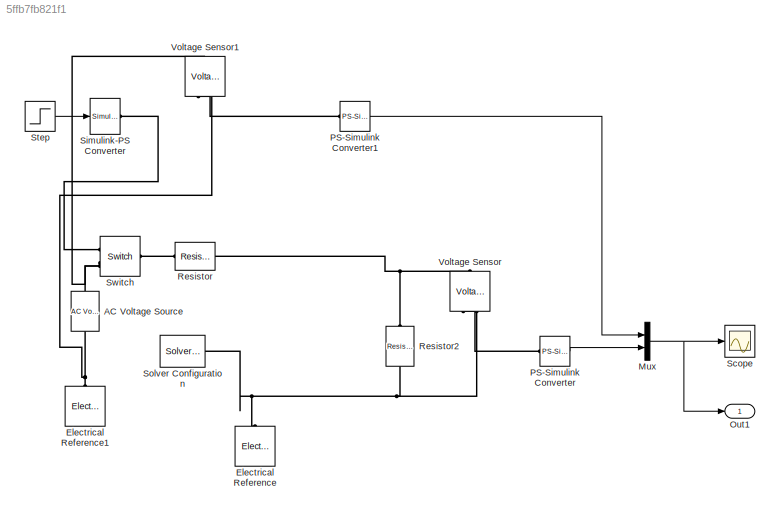
MODEL slx_5ffb7fb821f1
KIND model
BLOCK [Reference] AC Voltage Source  REF=fl_lib/Electrical/Electrical Sources/AC Voltage Source
  ClassName = ac_voltage
  ComponentPath = foundation.electrical.sources.ac_voltage
  ComponentVariantNames = ac_voltage
  ComponentVariants = foundation.electrical.sources.ac_voltage
  LocalVarDescs = |i|v
  LocalVarLogging = [0 0]
  LocalVarNames = |i|v
  Ports = [0, 0, 0, 0, 0, 1, 1]
  SchemaVersion = 1
  SourceBlock = fl_lib/Electrical/Electrical Sources/AC Voltage Source
  SourceFile = foundation.electrical.sources.ac_voltage
  SourceType = AC Voltage Source
  amp = 1
  amp_unit = V
  frequency = 60
  frequency_unit = Hz
  i_Log = off
  omega = 0
  omega_unit = rad/s
  shift = 0
  shift_unit = deg
  v_Log = off
BLOCK [Reference] Electrical Reference  REF=fl_lib/Electrical/Electrical Elements/Electrical Reference
  ClassName = reference
  ComponentPath = foundation.electrical.elements.reference
  ComponentVariantNames = reference
  ComponentVariants = foundation.electrical.elements.reference
  LocalVarDescs = |i
  LocalVarLogging = 0
  LocalVarNames = |i
  Ports = [0, 0, 0, 0, 0, 1]
  SchemaVersion = 1
  SourceBlock = fl_lib/Electrical/Electrical Elements/Electrical Reference
  SourceFile = foundation.electrical.elements.reference
  SourceType = Electrical Reference
  i_Log = off
BLOCK [Reference] Electrical Reference1  REF=fl_lib/Electrical/Electrical Elements/Electrical Reference
  ClassName = reference
  ComponentPath = foundation.electrical.elements.reference
  ComponentVariantNames = reference
  ComponentVariants = foundation.electrical.elements.reference
  LocalVarDescs = |i
  LocalVarLogging = 0
  LocalVarNames = |i
  Ports = [0, 0, 0, 0, 0, 1]
  SchemaVersion = 1
  SourceBlock = fl_lib/Electrical/Electrical Elements/Electrical Reference
  SourceFile = foundation.electrical.elements.reference
  SourceType = Electrical Reference
  i_Log = off
BLOCK [Mux] Mux
  DisplayOption = bar
  Inputs = 2
  Ports = [2, 1]
BLOCK [Outport] Out1
  IconDisplay = Port number
BLOCK [Reference] PS-Simulink Converter  REF=nesl_utility/PS-Simulink
Converter
  AffineConversion = off
  Frequencies = []
  LeftPortType = input
  PhysicalDomain = network_engine_domain
  Ports = [0, 1, 0, 0, 0, 1]
  PseudoPeriodic = off
  RightPortType = output
  SourceBlock = nesl_utility/PS-Simulink\nConverter
  SourceType = PS-Simulink\nConverter
  SubClassName = ps_output
  Unit = 1
BLOCK [Reference] PS-Simulink Converter1  REF=nesl_utility/PS-Simulink
Converter
  AffineConversion = off
  Frequencies = []
  LeftPortType = input
  PhysicalDomain = network_engine_domain
  Ports = [0, 1, 0, 0, 0, 1]
  PseudoPeriodic = off
  RightPortType = output
  SourceBlock = nesl_utility/PS-Simulink\nConverter
  SourceType = PS-Simulink\nConverter
  SubClassName = ps_output
  Unit = 1
BLOCK [Reference] Resistor  REF=fl_lib/Electrical/Electrical Elements/Resistor
  ClassName = resistor
  ComponentPath = foundation.electrical.elements.resistor
  ComponentVariantNames = resistor
  ComponentVariants = foundation.electrical.elements.resistor
  LocalVarDescs = |i|v
  LocalVarLogging = [0 0]
  LocalVarNames = |i|v
  Ports = [0, 0, 0, 0, 0, 1, 1]
  R = 1000
  R_unit = Ohm
  SchemaVersion = 1
  SourceBlock = fl_lib/Electrical/Electrical Elements/Resistor
  SourceFile = foundation.electrical.elements.resistor
  SourceType = Resistor
  i_Log = off
  v_Log = off
BLOCK [Reference] Resistor2  REF=fl_lib/Electrical/Electrical Elements/Resistor
  ClassName = resistor
  ComponentPath = foundation.electrical.elements.resistor
  ComponentVariantNames = resistor
  ComponentVariants = foundation.electrical.elements.resistor
  LocalVarDescs = |i|v
  LocalVarLogging = [0 0]
  LocalVarNames = |i|v
  Ports = [0, 0, 0, 0, 0, 1, 1]
  R = 1000
  R_unit = Ohm
  SchemaVersion = 1
  SourceBlock = fl_lib/Electrical/Electrical Elements/Resistor
  SourceFile = foundation.electrical.elements.resistor
  SourceType = Resistor
  i_Log = off
  v_Log = off
BLOCK [Scope] Scope
  DataFormat = StructureWithTime
  Floating = off
  NumInputPorts = 1
  Ports = [1]
  SampleTime = 0
  SaveToWorkspace = on
  ShowLegends = off
BLOCK [Reference] Simulink-PS Converter  REF=nesl_utility/Simulink-PS
Converter
  AffineConversion = off
  Frequencies = []
  InputFilterTimeConstant = 0.001
  InputFiltering = off
  LeftPortType = input
  NoiseDistribution = none
  NoiseParameters = []
  PhysicalDomain = network_engine_domain
  Ports = [1, 0, 0, 0, 0, 0, 1]
  PseudoPeriodic = off
  RightPortType = output
  SimscapeFilterOrder = 1
  SourceBlock = nesl_utility/Simulink-PS\nConverter
  SourceType = Simulink-PS\nConverter
  SubClassName = ps_input
  UdotUserProvided = 1
  Unit = 1
BLOCK [Reference] Solver Configuration  REF=nesl_utility/Solver
Configuration
  Accelerate = off
  DelaysMemoryBudget = 1024
  DoDC = off
  DoFixedCost = off
  EnableSwitchedLinearOptims = on
  FrequencyDomain = off
  Harmonics = []
  LeftPortType = input
  LinearAlgebra = Sparse
  LocalSolverChoice = NE_BACKWARD_EULER_ADVANCER
  LocalSolverSampleTime = 0.001
  MaxModeIter = 2
  MaxNonlinIter = 3
  PhysicalDomain = network_engine_domain
  Ports = [0, 0, 0, 0, 0, 0, 1]
  Profile = off
  ResidualTolerance = 1e-09
  RightPortType = generic
  SimulateNoise = off
  SourceBlock = nesl_utility/Solver\nConfiguration
  SourceType = Solver\nConfiguration
  SubClassName = solver
  Tones = []
  UseCCode = off
  UseLocalSampling = off
  UseLocalSolver = off
  UseNewInitialization = off
BLOCK [Step] Step
  SampleTime = 0
  Time = 0.05
BLOCK [Reference] Switch  REF=fl_lib/Electrical/Electrical Elements/Switch
  ClassName = controlled_switch
  ComponentPath = foundation.electrical.elements.controlled_switch
  ComponentVariantNames = controlled_switch
  ComponentVariants = foundation.electrical.elements.controlled_switch
  G_open = 1e-8
  G_open_unit = 1/Ohm
  LocalVarDescs = |i|v
  LocalVarLogging = [0 0]
  LocalVarNames = |i|v
  Ports = [0, 0, 0, 0, 0, 1, 2]
  R_closed = 0.01
  R_closed_unit = Ohm
  SchemaVersion = 1
  SourceBlock = fl_lib/Electrical/Electrical Elements/Switch
  SourceFile = foundation.electrical.elements.controlled_switch
  SourceType = Switch
  Threshold = 0
  Threshold_unit = 1
  i_Log = off
  v_Log = off
BLOCK [Reference] Voltage Sensor  REF=fl_lib/Electrical/Electrical Sensors/Voltage Sensor
  ClassName = voltage
  ComponentPath = foundation.electrical.sensors.voltage
  ComponentVariantNames = voltage
  ComponentVariants = foundation.electrical.sensors.voltage
  LocalVarDescs = |i1|v1
  LocalVarLogging = [0 0]
  LocalVarNames = |i1|v1
  Ports = [0, 0, 0, 0, 0, 1, 2]
  SchemaVersion = 1
  SourceBlock = fl_lib/Electrical/Electrical Sensors/Voltage Sensor
  SourceFile = foundation.electrical.sensors.voltage
  SourceType = Voltage Sensor
  i1_Log = off
  v1_Log = off
BLOCK [Reference] Voltage Sensor1  REF=fl_lib/Electrical/Electrical Sensors/Voltage Sensor
  ClassName = voltage
  ComponentPath = foundation.electrical.sensors.voltage
  ComponentVariantNames = voltage
  ComponentVariants = foundation.electrical.sensors.voltage
  LocalVarDescs = |i1|v1
  LocalVarLogging = [0 0]
  LocalVarNames = |i1|v1
  Ports = [0, 0, 0, 0, 0, 1, 2]
  SchemaVersion = 1
  SourceBlock = fl_lib/Electrical/Electrical Sensors/Voltage Sensor
  SourceFile = foundation.electrical.sensors.voltage
  SourceType = Voltage Sensor
  i1_Log = off
  v1_Log = off
NET Mux:1 -> Out1:1, Scope:1
LINE PS-Simulink Converter1:1 -> Mux:1
LINE PS-Simulink Converter:1 -> Mux:2
LINE Step:1 -> Simulink-PS Converter:1
PNET net1: AC Voltage Source:LConn1 -- Switch:RConn2 -- Voltage Sensor1:LConn1
PNET net2: AC Voltage Source:RConn1 -- Electrical Reference1:LConn1 -- Voltage Sensor1:RConn2
PNET net3: Electrical Reference:LConn1 -- Resistor2:RConn1 -- Solver Configuration:RConn1 -- Voltage Sensor:RConn2
PLINE PS-Simulink Converter1:LConn1 -- Voltage Sensor1:RConn1
PLINE PS-Simulink Converter:LConn1 -- Voltage Sensor:RConn1
PNET net4: Resistor2:LConn1 -- Resistor:RConn1 -- Voltage Sensor:LConn1
PLINE Resistor:LConn1 -- Switch:LConn1
PLINE Simulink-PS Converter:RConn1 -- Switch:RConn1
note: NET lines group one-source signal fan-out (src -> all destinations, sorted); 1:1 wires keep LINE; PNET lines group multi-terminal physical nets as a canonical sorted terminal list (undirected conserving connections); 2-terminal nets keep the pairwise PLINE form
